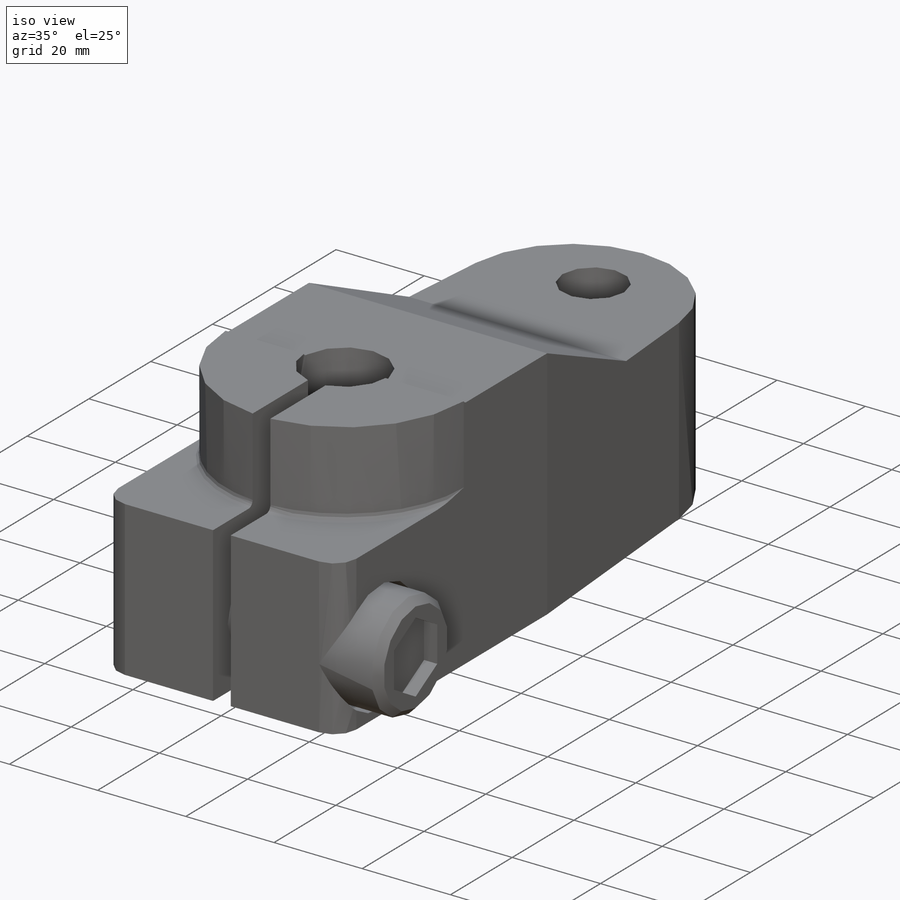
[diagram: iso view]
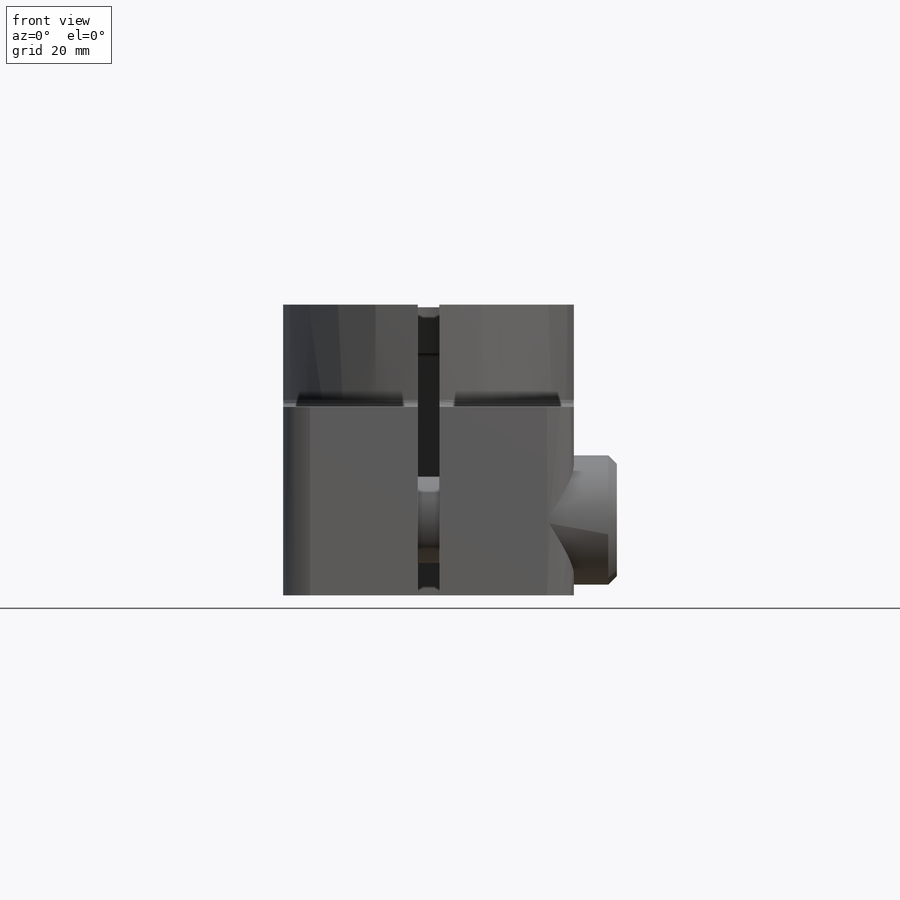
[diagram: front view]
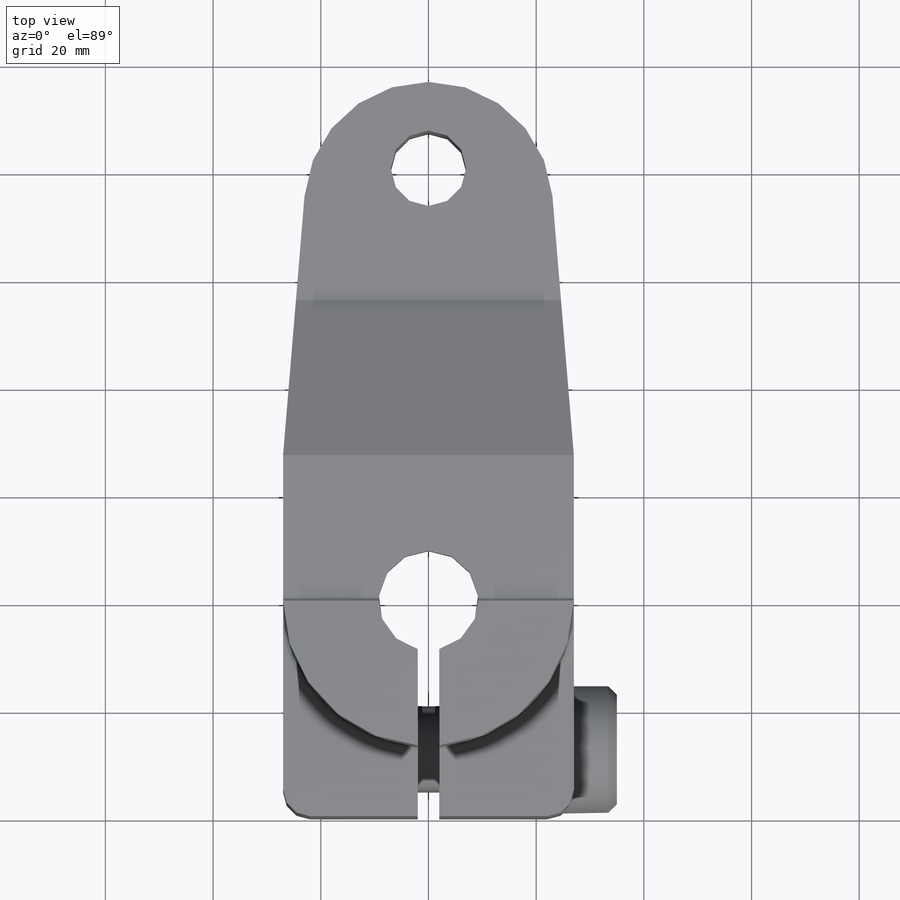
[diagram: top view]
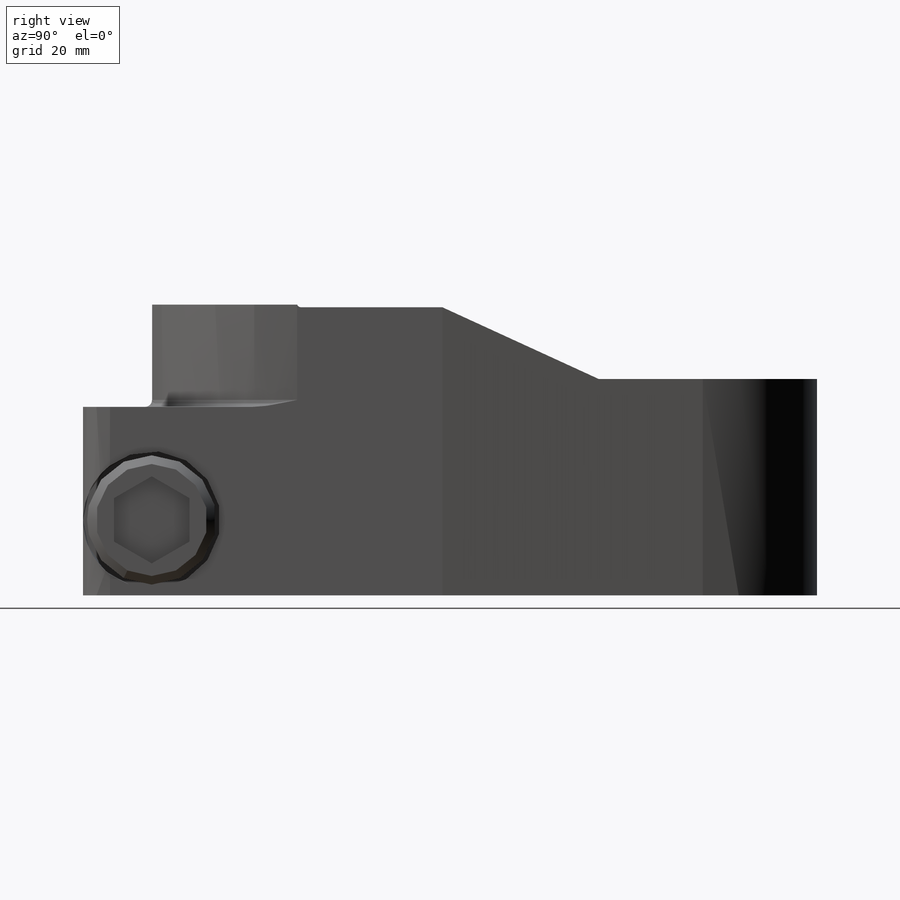
[diagram: right view]
SOLIDWORKS PART (.sldprt)
format: sldprt  version: not decoded by parser v0  size: 352,768 bytes
history: native  units: mm
features: sketch x11, fillet x4, cut_extrude x4, cut_revolve x3, material x1, extrude x1, plane x1, revolve x1, hole x1, thread x1 (+13 scaffold rows collapsed)
feature tree (41):
  scaffold x13  (default folders/planes/origin — collapsed)
  material  "AISI 1020"
  sketch  "S2D0010"  dims[c1.D3=~8.83534mm c1.D4=~23.098983mm c1.D1=39.75mm c1.D2=54.0mm c2.D3=136.3mm c2.D5=27.0mm]
  extrude  "Extrude1"  Depth=54mm
  fillet  "Fillet2"  Radius=5mm
  sketch  "Sketch2"  dims[D1=18.5mm D2=45.0mm D3=36.0mm]
  cut_revolve  "Cut-Revolve1"  Angle=360deg
  sketch  "S2D0001"  dims[D1=4.0mm]
  cut_extrude  "Cut-Extrude1"  [1 undecoded]
  plane  "Plane1"  Offset=27mm
  sketch  "S2D0013"  dims[D1=11.25mm D2=14.0mm D3=8.0mm D4=25.499mm D5=16.75mm D6=14.0mm]
  cut_revolve  "Cut-Revolve2"  Angle=360deg
  sketch  "Sketch11"  dims[D1=35.0mm D2=25.0mm]
  cut_revolve  "Cut-Revolve3"  Angle=180deg
  fillet  "Fillet3"  Radius=1.3mm
  sketch  "Sketch12"  dims[D1=0.5mm D2=60.0mm D3=27.0mm]
  cut_extrude  "Cut-Extrude6"  [1 undecoded]
  sketch  "Sketch13"  dims[c1.D1=~15.542475mm c1.D2=29.0mm c1.D3=60.0mm c2.D1=~40.196812mm c2.D2=74.625mm c3.D2=~24.642373deg c3.D3=56.0mm]
  cut_extrude  "Cut-Extrude7"  [1 undecoded]
  sketch  "Sketch8"  dims[c1.D1=16.0mm c1.D2=24.0mm c1.D3=~1.131371mm c2.D3=45.0deg c2.D4=1.6mm c2.D5=16.0mm c2.D6=45.0mm c2.D7=~0.707107mm c3.D7=45.0deg c3.D8=0.5mm]
  revolve  "Revolve1"  Angle=360deg
  sketch  "Sketch10"  dims[D1=~5.098076mm D2=14.0mm]
  cut_extrude  "Cut-Extrude5"  Depth=3mm
  fillet  "Fillet4"  Radius=0.75mm
  fillet  "Fillet5"  Radius=0.8mm
  hole  "M16x2.0 Tapped Hole1"  Diameter=14mm Depth=40.196812mm
  sketch  "Sketch19"  dims[D1=80.5mm]
  sketch  "Sketch18"  dims[hole-wizard template sketch: 59 standard entries collapsed; hole parameters kept: c18.Thru Tap Drill Dia.=14.0mm c18.Thru Tap Drill Depth=~40.196812mm]
  thread  "Hole Thread3"  Diameter=16mm  [1 undecoded]
decode coverage: 23 of 26 modeling features carry decoded parameters
note: ~ marks probable driven/reference dimensions
note: 4 parameter values undecoded
summary: no parameter record found for 3 features
note: suppression state not decoded; provenance and decode notes live in map.json
